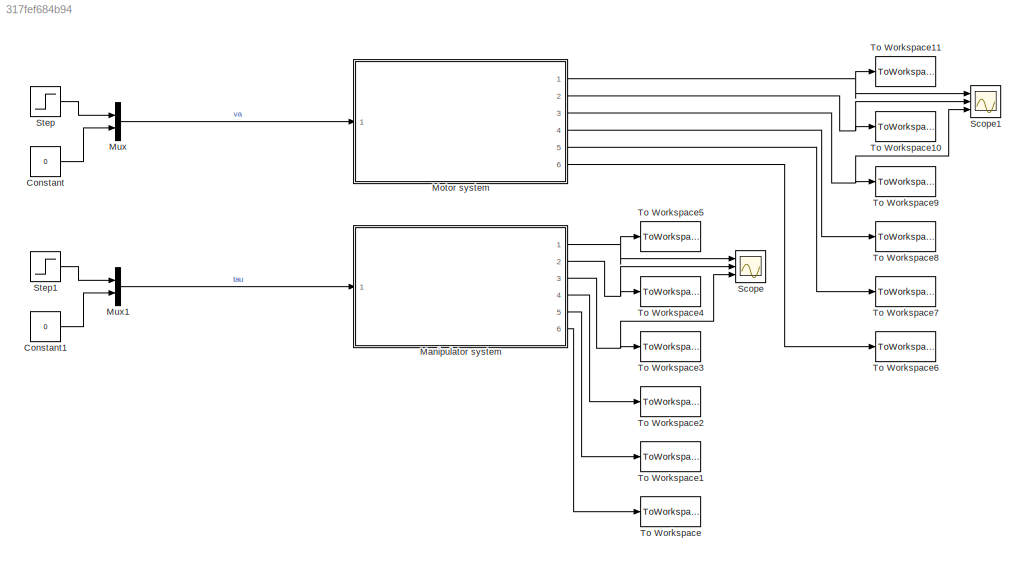
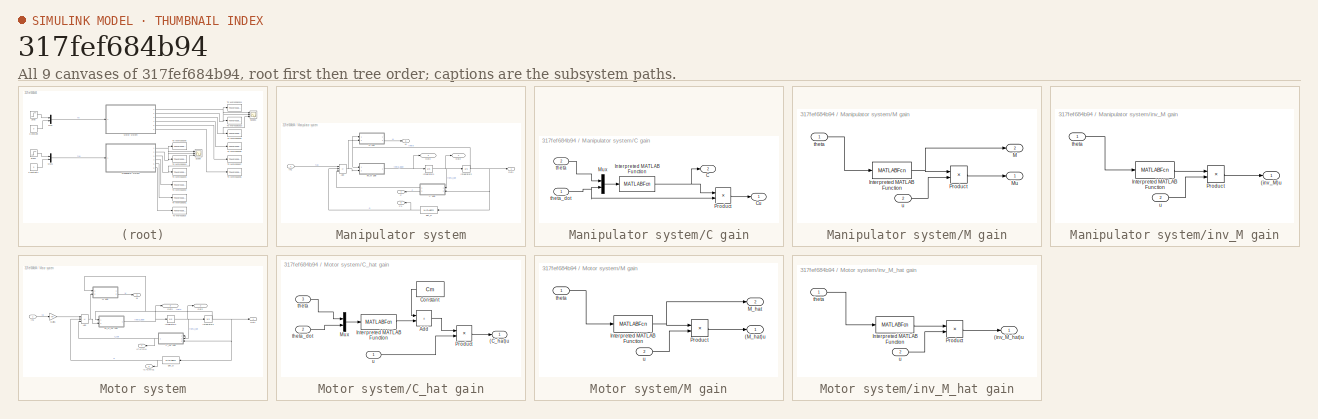
[diagram: thumbnail index - all 9 canvases of the model, root first then tree order]
MODEL slx_317fef684b94
KIND model
CONFIG AbsTol = auto
CONFIG EnableMultiTasking = off
CONFIG FixedStep = auto
CONFIG MaxStep = auto
CONFIG MinStep = auto
CONFIG RelTol = 1e-3
CONFIG SampleTimeConstraint = Unconstrained
CONFIG SolverName = VariableStepAuto
CONFIG StartTime = 0.0
CONFIG StopTime = 20
BLOCK [Constant] Constant
  Value = 0
BLOCK [Constant] Constant1
  Value = 0
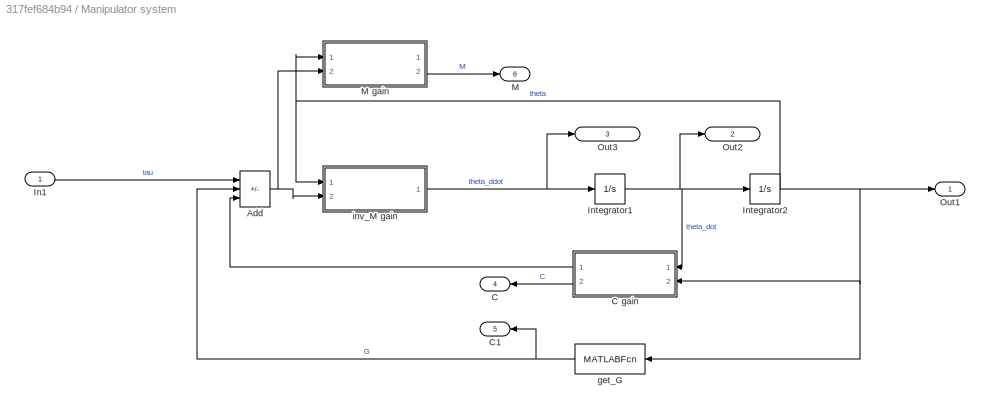
BLOCK [SubSystem] Manipulator system
  Ports = [1, 6]
  RequestExecContextInheritance = off
BLOCK [Sum] Manipulator system/Add
  IconShape = rectangular
  Inputs = +--
  Ports = [3, 1]
BLOCK [Outport] Manipulator system/C
  IconDisplay = Signal name
  Port = 4
BLOCK [SubSystem] Manipulator system/C gain
  Ports = [2, 2]
  RequestExecContextInheritance = off
BLOCK [Outport] Manipulator system/C gain/C
  Port = 2
BLOCK [Outport] Manipulator system/C gain/Cu
BLOCK [MATLABFcn] Manipulator system/C gain/Interpreted MATLAB Function
  MATLABFcn = get_C(u(2), u(3), u(4))
  Output1D = off
  Ports = [1, 1]
BLOCK [Mux] Manipulator system/C gain/Mux
  DisplayOption = bar
  Inputs = 2
  Ports = [2, 1]
BLOCK [Product] Manipulator system/C gain/Product
  Multiplication = Matrix(*)
  Ports = [2, 1]
BLOCK [Inport] Manipulator system/C gain/theta
  Port = 2
BLOCK [Inport] Manipulator system/C gain/theta_dot
BLOCK [Outport] Manipulator system/C1
  IconDisplay = Signal name
  Port = 5
BLOCK [Inport] Manipulator system/In1
  IconDisplay = Signal name
BLOCK [Integrator] Manipulator system/Integrator1
  InitialCondition = theta_dot0
  Ports = [1, 1]
BLOCK [Integrator] Manipulator system/Integrator2
  InitialCondition = theta0
  Ports = [1, 1]
BLOCK [Outport] Manipulator system/M
  IconDisplay = Signal name
  Port = 6
BLOCK [SubSystem] Manipulator system/M gain
  Ports = [2, 2]
  RequestExecContextInheritance = off
BLOCK [MATLABFcn] Manipulator system/M gain/Interpreted MATLAB Function
  MATLABFcn = get_M(u(2))
  Output1D = off
  Ports = [1, 1]
BLOCK [Outport] Manipulator system/M gain/M
  Port = 2
BLOCK [Outport] Manipulator system/M gain/Mu
BLOCK [Product] Manipulator system/M gain/Product
  Multiplication = Matrix(*)
  Ports = [2, 1]
BLOCK [Inport] Manipulator system/M gain/theta
BLOCK [Inport] Manipulator system/M gain/u
  Port = 2
BLOCK [Outport] Manipulator system/Out1
  IconDisplay = Signal name
BLOCK [Outport] Manipulator system/Out2
  IconDisplay = Signal name
  Port = 2
BLOCK [Outport] Manipulator system/Out3
  IconDisplay = Signal name
  Port = 3
BLOCK [MATLABFcn] Manipulator system/get_G
  MATLABFcn = get_G(u(2))
  Output1D = off
  Ports = [1, 1]
BLOCK [SubSystem] Manipulator system/inv_M gain
  Ports = [2, 1]
  RequestExecContextInheritance = off
BLOCK [Outport] Manipulator system/inv_M gain/(inv_M)u
BLOCK [MATLABFcn] Manipulator system/inv_M gain/Interpreted MATLAB Function
  MATLABFcn = get_inv_M(u(2))
  Output1D = off
  Ports = [1, 1]
BLOCK [Product] Manipulator system/inv_M gain/Product
  Multiplication = Matrix(*)
  Ports = [2, 1]
BLOCK [Inport] Manipulator system/inv_M gain/theta
BLOCK [Inport] Manipulator system/inv_M gain/u
  Port = 2
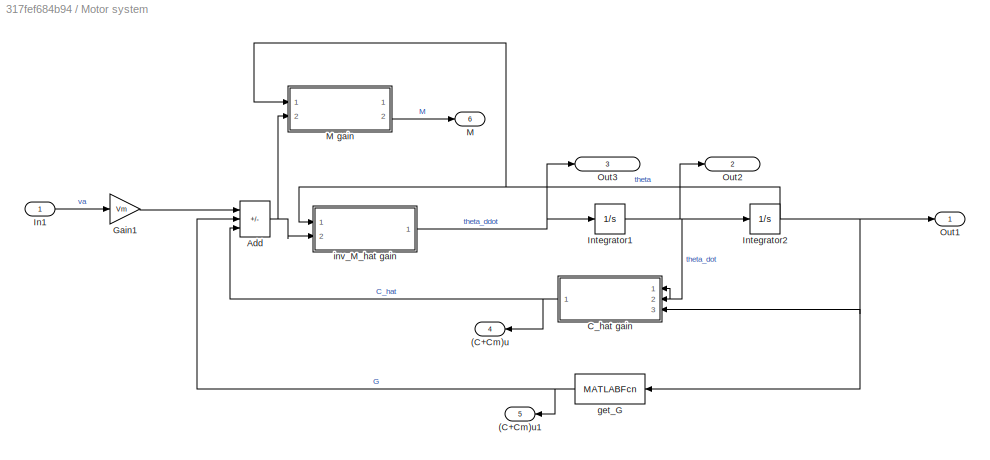
BLOCK [SubSystem] Motor system
  Ports = [1, 6]
  RequestExecContextInheritance = off
BLOCK [Outport] Motor system/(C+Cm)u
  IconDisplay = Signal name
  Port = 4
BLOCK [Outport] Motor system/(C+Cm)u1
  IconDisplay = Signal name
  Port = 5
BLOCK [Sum] Motor system/Add
  IconShape = rectangular
  Inputs = +--
  Ports = [3, 1]
BLOCK [SubSystem] Motor system/C_hat gain
  Ports = [3, 1]
  RequestExecContextInheritance = off
BLOCK [Outport] Motor system/C_hat gain/(C_hat)u
BLOCK [Sum] Motor system/C_hat gain/Add
  IconShape = rectangular
  Ports = [2, 1]
BLOCK [Constant] Motor system/C_hat gain/Constant
  Value = Cm
BLOCK [MATLABFcn] Motor system/C_hat gain/Interpreted MATLAB Function
  MATLABFcn = get_C(u(2), u(3), u(4))
  Output1D = off
  Ports = [1, 1]
BLOCK [Mux] Motor system/C_hat gain/Mux
  DisplayOption = bar
  Inputs = 2
  Ports = [2, 1]
BLOCK [Product] Motor system/C_hat gain/Product
  Multiplication = Matrix(*)
  Ports = [2, 1]
BLOCK [Inport] Motor system/C_hat gain/theta
  Port = 3
BLOCK [Inport] Motor system/C_hat gain/theta_dot
  Port = 2
BLOCK [Inport] Motor system/C_hat gain/u
BLOCK [Gain] Motor system/Gain1
  Gain = Vm
  Multiplication = Matrix(K*u) (u vector)
BLOCK [Inport] Motor system/In1
  IconDisplay = Signal name
BLOCK [Integrator] Motor system/Integrator1
  InitialCondition = theta_dot0
  Ports = [1, 1]
BLOCK [Integrator] Motor system/Integrator2
  InitialCondition = theta0
  Ports = [1, 1]
BLOCK [Outport] Motor system/M
  IconDisplay = Signal name
  Port = 6
BLOCK [SubSystem] Motor system/M gain
  Ports = [2, 2]
  RequestExecContextInheritance = off
BLOCK [Outport] Motor system/M gain/(M_hat)u
BLOCK [MATLABFcn] Motor system/M gain/Interpreted MATLAB Function
  MATLABFcn = get_M_hat(u(2))
  Output1D = off
  Ports = [1, 1]
BLOCK [Outport] Motor system/M gain/M_hat
  Port = 2
BLOCK [Product] Motor system/M gain/Product
  Multiplication = Matrix(*)
  Ports = [2, 1]
BLOCK [Inport] Motor system/M gain/theta
BLOCK [Inport] Motor system/M gain/u
  Port = 2
BLOCK [Outport] Motor system/Out1
  IconDisplay = Signal name
BLOCK [Outport] Motor system/Out2
  IconDisplay = Signal name
  Port = 2
BLOCK [Outport] Motor system/Out3
  IconDisplay = Signal name
  Port = 3
BLOCK [MATLABFcn] Motor system/get_G
  MATLABFcn = get_G(u(2))
  Output1D = off
  Ports = [1, 1]
BLOCK [SubSystem] Motor system/inv_M_hat gain
  Ports = [2, 1]
  RequestExecContextInheritance = off
BLOCK [Outport] Motor system/inv_M_hat gain/(inv_M_hat)u
BLOCK [MATLABFcn] Motor system/inv_M_hat gain/Interpreted MATLAB Function
  MATLABFcn = get_inv_M_hat(u(2))
  Output1D = off
  Ports = [1, 1]
BLOCK [Product] Motor system/inv_M_hat gain/Product
  Multiplication = Matrix(*)
  Ports = [2, 1]
BLOCK [Inport] Motor system/inv_M_hat gain/theta
BLOCK [Inport] Motor system/inv_M_hat gain/u
  Port = 2
BLOCK [Mux] Mux
  DisplayOption = bar
  Inputs = 2
  Ports = [2, 1]
BLOCK [Mux] Mux1
  DisplayOption = bar
  Inputs = 2
  Ports = [2, 1]
BLOCK [Scope] Scope
  Floating = off
  NumInputPorts = 3
  Ports = [3]
  ScopeSpecificationString = Simulink.scopes.TimeScopeBlockCfg('CurrentConfiguration', extmgr.ConfigurationSet(extmgr.Configuration('Core','General UI',true),extmgr.Configuration('Core','Source UI',true),extmgr.Configuration('Sources','WiredSimulink',true),extmgr.Configuration('Visuals','Time Domain',true,'SerializedDisplays',{struct('MinYLimReal','-1.00000','MaxYLimReal','1.00000','YLabelReal','','MinYLimMag','0.00000','MaxY...<+2865ch>
BLOCK [Scope] Scope1
  Floating = off
  NumInputPorts = 3
  Ports = [3]
  ScopeSpecificationString = Simulink.scopes.TimeScopeBlockCfg('CurrentConfiguration', extmgr.ConfigurationSet(extmgr.Configuration('Core','General UI',true),extmgr.Configuration('Core','Source UI',true),extmgr.Configuration('Sources','WiredSimulink',true,'DataLoggingVariableName','ScopeData1'),extmgr.Configuration('Visuals','Time Domain',true,'SerializedDisplays',{struct('MinYLimReal','-0.76285','MaxYLimReal','4.91658','YLab...<+2878ch>
BLOCK [Step] Step
  After = 0
  SampleTime = 0
BLOCK [Step] Step1
  After = 0
  SampleTime = 0
BLOCK [ToWorkspace] To Workspace
  MaxDataPoints = inf
  Ports = [1]
  SampleTime = -1
  SaveFormat = Timeseries
  VariableName = mani_M
BLOCK [ToWorkspace] To Workspace1
  MaxDataPoints = inf
  Ports = [1]
  SampleTime = -1
  SaveFormat = Timeseries
  VariableName = mani_G
BLOCK [ToWorkspace] To Workspace10
  MaxDataPoints = inf
  Ports = [1]
  SampleTime = -1
  SaveFormat = Timeseries
  VariableName = motor_theta_dot
BLOCK [ToWorkspace] To Workspace11
  MaxDataPoints = inf
  Ports = [1]
  SampleTime = -1
  SaveFormat = Timeseries
  VariableName = motor_theta
BLOCK [ToWorkspace] To Workspace2
  MaxDataPoints = inf
  Ports = [1]
  SampleTime = -1
  SaveFormat = Timeseries
  VariableName = mani_C
BLOCK [ToWorkspace] To Workspace3
  MaxDataPoints = inf
  Ports = [1]
  SampleTime = -1
  SaveFormat = Timeseries
  VariableName = mani_theta_ddot
BLOCK [ToWorkspace] To Workspace4
  MaxDataPoints = inf
  Ports = [1]
  SampleTime = -1
  SaveFormat = Timeseries
  VariableName = mani_theta_dot
BLOCK [ToWorkspace] To Workspace5
  MaxDataPoints = inf
  Ports = [1]
  SampleTime = -1
  SaveFormat = Timeseries
  VariableName = mani_theta
BLOCK [ToWorkspace] To Workspace6
  MaxDataPoints = inf
  Ports = [1]
  SampleTime = -1
  SaveFormat = Timeseries
  VariableName = motor_M
BLOCK [ToWorkspace] To Workspace7
  MaxDataPoints = inf
  Ports = [1]
  SampleTime = -1
  SaveFormat = Timeseries
  VariableName = motor_G
BLOCK [ToWorkspace] To Workspace8
  MaxDataPoints = inf
  Ports = [1]
  SampleTime = -1
  SaveFormat = Timeseries
  VariableName = motor_C
BLOCK [ToWorkspace] To Workspace9
  MaxDataPoints = inf
  Ports = [1]
  SampleTime = -1
  SaveFormat = Timeseries
  VariableName = motor_theta_ddot
LINE Constant1:1 -> Mux1:2
LINE Constant:1 -> Mux:2
NET Manipulator system/Add:1 -> Manipulator system/M gain:2, Manipulator system/inv_M gain:2
NET Manipulator system/C gain/Interpreted MATLAB Function:1 -> Manipulator system/C gain/C:1, Manipulator system/C gain/Product:1
LINE Manipulator system/C gain/Mux:1 -> Manipulator system/C gain/Interpreted MATLAB Function:1
LINE Manipulator system/C gain/Product:1 -> Manipulator system/C gain/Cu:1
LINE Manipulator system/C gain/theta:1 -> Manipulator system/C gain/Mux:1
NET Manipulator system/C gain/theta_dot:1 -> Manipulator system/C gain/Mux:2, Manipulator system/C gain/Product:2
LINE Manipulator system/C gain:1 -> Manipulator system/Add:3
LINE Manipulator system/C gain:2 -> Manipulator system/C:1
LINE Manipulator system/In1:1 -> Manipulator system/Add:1
NET Manipulator system/Integrator1:1 -> Manipulator system/C gain:1, Manipulator system/Integrator2:1, Manipulator system/Out2:1
NET Manipulator system/Integrator2:1 -> Manipulator system/C gain:2, Manipulator system/M gain:1, Manipulator system/Out1:1, Manipulator system/get_G:1, Manipulator system/inv_M gain:1
NET Manipulator system/M gain/Interpreted MATLAB Function:1 -> Manipulator system/M gain/M:1, Manipulator system/M gain/Product:1
LINE Manipulator system/M gain/Product:1 -> Manipulator system/M gain/Mu:1
LINE Manipulator system/M gain/theta:1 -> Manipulator system/M gain/Interpreted MATLAB Function:1
LINE Manipulator system/M gain/u:1 -> Manipulator system/M gain/Product:2
LINE Manipulator system/M gain:2 -> Manipulator system/M:1
NET Manipulator system/get_G:1 -> Manipulator system/Add:2, Manipulator system/C1:1
LINE Manipulator system/inv_M gain/Interpreted MATLAB Function:1 -> Manipulator system/inv_M gain/Product:1
LINE Manipulator system/inv_M gain/Product:1 -> Manipulator system/inv_M gain/(inv_M)u:1
LINE Manipulator system/inv_M gain/theta:1 -> Manipulator system/inv_M gain/Interpreted MATLAB Function:1
LINE Manipulator system/inv_M gain/u:1 -> Manipulator system/inv_M gain/Product:2
NET Manipulator system/inv_M gain:1 -> Manipulator system/Integrator1:1, Manipulator system/Out3:1
NET Manipulator system:1 -> Scope:1, To Workspace5:1
NET Manipulator system:2 -> Scope:2, To Workspace4:1
NET Manipulator system:3 -> Scope:3, To Workspace3:1
LINE Manipulator system:4 -> To Workspace2:1
LINE Manipulator system:5 -> To Workspace1:1
LINE Manipulator system:6 -> To Workspace:1
NET Motor system/Add:1 -> Motor system/M gain:2, Motor system/inv_M_hat gain:2
LINE Motor system/C_hat gain/Add:1 -> Motor system/C_hat gain/Product:1
LINE Motor system/C_hat gain/Constant:1 -> Motor system/C_hat gain/Add:1
LINE Motor system/C_hat gain/Interpreted MATLAB Function:1 -> Motor system/C_hat gain/Add:2
LINE Motor system/C_hat gain/Mux:1 -> Motor system/C_hat gain/Interpreted MATLAB Function:1
LINE Motor system/C_hat gain/Product:1 -> Motor system/C_hat gain/(C_hat)u:1
LINE Motor system/C_hat gain/theta:1 -> Motor system/C_hat gain/Mux:1
LINE Motor system/C_hat gain/theta_dot:1 -> Motor system/C_hat gain/Mux:2
LINE Motor system/C_hat gain/u:1 -> Motor system/C_hat gain/Product:2
NET Motor system/C_hat gain:1 -> Motor system/(C+Cm)u:1, Motor system/Add:3
LINE Motor system/Gain1:1 -> Motor system/Add:1
LINE Motor system/In1:1 -> Motor system/Gain1:1
NET Motor system/Integrator1:1 -> Motor system/C_hat gain:1, Motor system/C_hat gain:2, Motor system/Integrator2:1, Motor system/Out2:1
NET Motor system/Integrator2:1 -> Motor system/C_hat gain:3, Motor system/M gain:1, Motor system/Out1:1, Motor system/get_G:1, Motor system/inv_M_hat gain:1
NET Motor system/M gain/Interpreted MATLAB Function:1 -> Motor system/M gain/M_hat:1, Motor system/M gain/Product:1
LINE Motor system/M gain/Product:1 -> Motor system/M gain/(M_hat)u:1
LINE Motor system/M gain/theta:1 -> Motor system/M gain/Interpreted MATLAB Function:1
LINE Motor system/M gain/u:1 -> Motor system/M gain/Product:2
LINE Motor system/M gain:2 -> Motor system/M:1
NET Motor system/get_G:1 -> Motor system/(C+Cm)u1:1, Motor system/Add:2
LINE Motor system/inv_M_hat gain/Interpreted MATLAB Function:1 -> Motor system/inv_M_hat gain/Product:1
LINE Motor system/inv_M_hat gain/Product:1 -> Motor system/inv_M_hat gain/(inv_M_hat)u:1
LINE Motor system/inv_M_hat gain/theta:1 -> Motor system/inv_M_hat gain/Interpreted MATLAB Function:1
LINE Motor system/inv_M_hat gain/u:1 -> Motor system/inv_M_hat gain/Product:2
NET Motor system/inv_M_hat gain:1 -> Motor system/Integrator1:1, Motor system/Out3:1
NET Motor system:1 -> Scope1:1, To Workspace11:1
NET Motor system:2 -> Scope1:2, To Workspace10:1
NET Motor system:3 -> Scope1:3, To Workspace9:1
LINE Motor system:4 -> To Workspace8:1
LINE Motor system:5 -> To Workspace7:1
LINE Motor system:6 -> To Workspace6:1
LINE Mux1:1 -> Manipulator system:1
LINE Mux:1 -> Motor system:1
LINE Step1:1 -> Mux1:1
LINE Step:1 -> Mux:1
note: NET lines group one-source signal fan-out (src -> all destinations, sorted); 1:1 wires keep LINE
